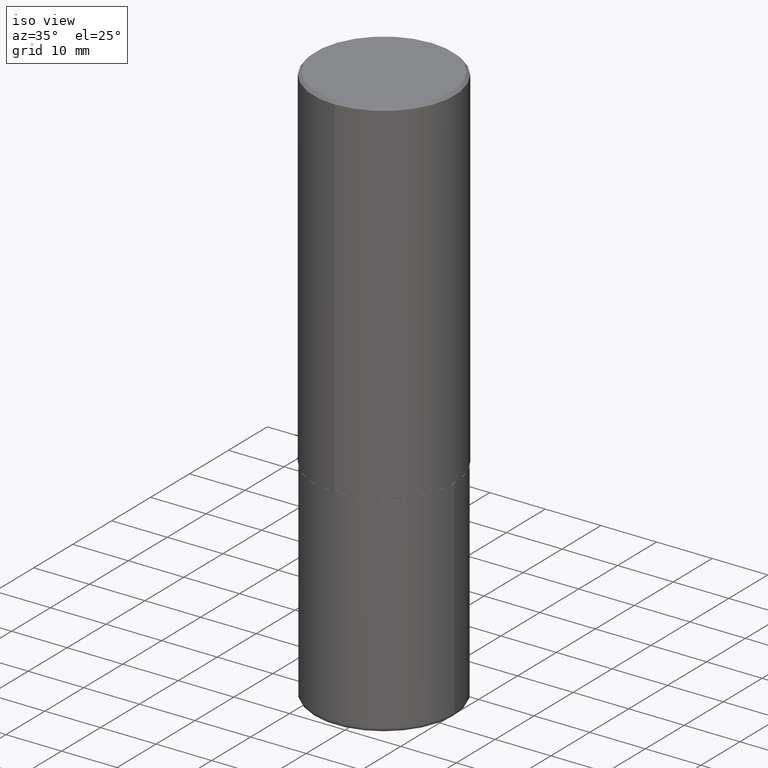
[diagram: clean part render]
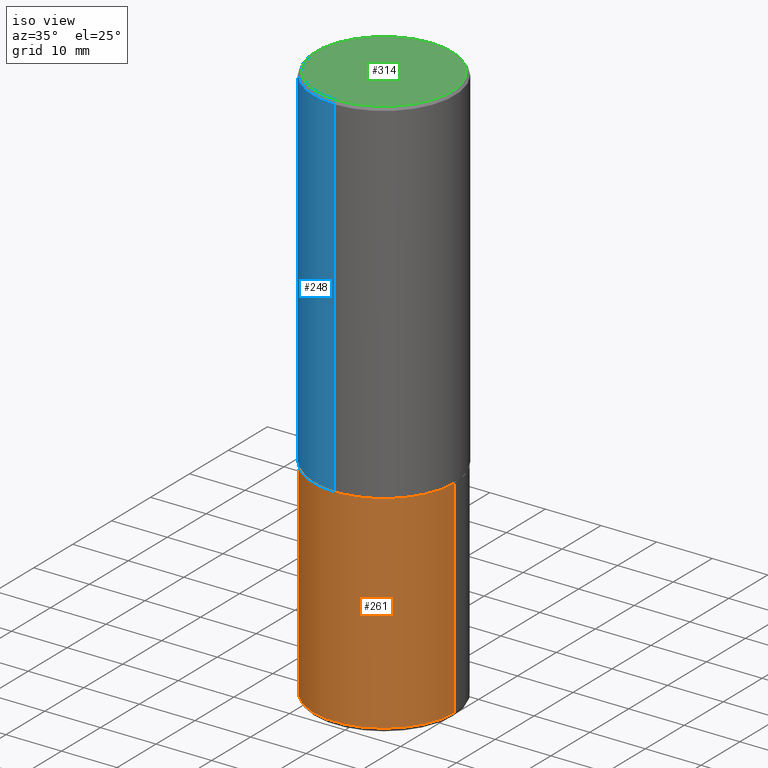
[diagram: same view with three faces highlighted in distinct colors, each labeled with its STEP entity id]
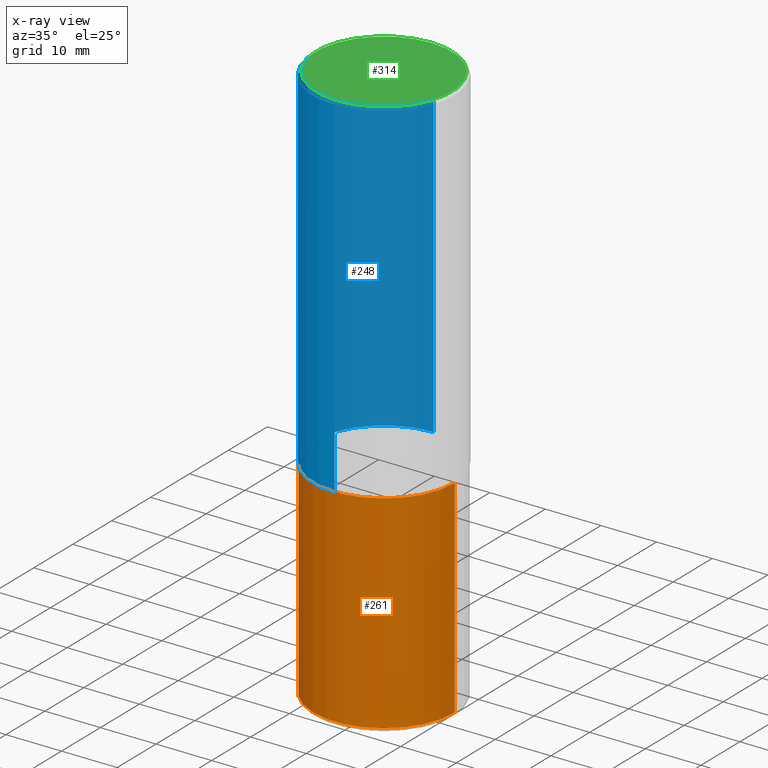
[diagram: x-ray of the same camera — body ghosted, the three highlighted faces saturated]
A machine part, iso view with three faces highlighted in distinct colors.
The next image is the same camera in x-ray (body ghosted, the three faces saturated) — at least one of them is partly hidden behind the body in this view.
Their STEP definitions:

[orange] entity #261 — the highlighted cylindrical surface (partial cylindrical patch) has radius 12.7 mm, axis along (-0, 0, 1).
#12 = CARTESIAN_POINT ( 'NONE',  ( -0.5000000000000000000, -1.030846723640678645E-14, -3.970000000000000195 ) ) ;
#16 = DIRECTION ( 'NONE',  ( -2.445468806185136597E-29, 3.491481338843145583E-15, 1.000000000000000000 ) ) ;
#19 = CARTESIAN_POINT ( 'NONE',  ( -0.5000000000000000000, -7.742228452357075234E-15, -2.500000000000000000 ) ) ;
#49 = CARTESIAN_POINT ( 'NONE',  ( 6.113672015462842613E-29, -8.728703347107864943E-15, -2.500000000000000000 ) ) ;
#69 = ORIENTED_EDGE ( 'NONE', *, *, #324, .F. ) ;
#75 = DIRECTION ( 'NONE',  ( -2.445468806185136877E-29, 3.491481338843145188E-15, 1.000000000000000000 ) ) ;
#81 = DIRECTION ( 'NONE',  ( 1.000000000000000000, -6.982962677686265133E-15, 0.000000000000000000 ) ) ;
#97 = ORIENTED_EDGE ( 'NONE', *, *, #138, .T. ) ;
#98 = EDGE_CURVE ( 'NONE', #128, #287, #199, .T. ) ;
#108 = CARTESIAN_POINT ( 'NONE',  ( 9.708511160554992872E-29, -1.386118091520728738E-14, -3.970000000000000195 ) ) ;
#112 = CARTESIAN_POINT ( 'NONE',  ( -0.5000000000000000000, 3.552713678800500929E-15, -2.459467545127452891E-29 ) ) ;
#118 = FACE_OUTER_BOUND ( 'NONE', #133, .T. ) ;
#119 = VERTEX_POINT ( 'NONE', #375 ) ;
#122 = CIRCLE ( 'NONE', #131, 0.5000000000000000000 ) ;
#126 = VERTEX_POINT ( 'NONE', #298 ) ;
#128 = VERTEX_POINT ( 'NONE', #12 ) ;
#131 = AXIS2_PLACEMENT_3D ( 'NONE', #49, #237, #277 ) ;
#133 = EDGE_LOOP ( 'NONE', ( #350, #97, #357, #69 ) ) ;
#138 = EDGE_CURVE ( 'NONE', #128, #126, #221, .T. ) ;
#159 = AXIS2_PLACEMENT_3D ( 'NONE', #108, #16, #81 ) ;
#199 = LINE ( 'NONE', #112, #334 ) ;
#221 = CIRCLE ( 'NONE', #159, 0.5000000000000001110 ) ;
#234 = EDGE_CURVE ( 'NONE', #126, #119, #332, .T. ) ;
#237 = DIRECTION ( 'NONE',  ( -2.445468806185136597E-29, 3.491481338843145583E-15, 1.000000000000000000 ) ) ;
#240 = VECTOR ( 'NONE', #244, 39.37007874015748143 ) ;
#242 = DIRECTION ( 'NONE',  ( -2.445468806185136597E-29, 3.491481338843145583E-15, 1.000000000000000000 ) ) ;
#244 = DIRECTION ( 'NONE',  ( -2.445468806185136877E-29, 3.491481338843145188E-15, 1.000000000000000000 ) ) ;
#261 = ADVANCED_FACE ( 'NONE', ( #118 ), #378, .T. ) ;
#273 = CARTESIAN_POINT ( 'NONE',  ( 0.5000000000000000000, -3.491481338843133355E-15, 2.438088387897967896E-29 ) ) ;
#277 = DIRECTION ( 'NONE',  ( 1.000000000000000000, -6.982962677686269077E-15, 0.000000000000000000 ) ) ;
#287 = VERTEX_POINT ( 'NONE', #19 ) ;
#298 = CARTESIAN_POINT ( 'NONE',  ( 0.5000000000000000000, -1.735266225405042074E-14, -3.970000000000000195 ) ) ;
#301 = AXIS2_PLACEMENT_3D ( 'NONE', #344, #242, #315 ) ;
#315 = DIRECTION ( 'NONE',  ( 1.000000000000000000, -6.982962677686266711E-15, 4.876176775795935793E-29 ) ) ;
#324 = EDGE_CURVE ( 'NONE', #287, #119, #122, .T. ) ;
#332 = LINE ( 'NONE', #273, #240 ) ;
#334 = VECTOR ( 'NONE', #75, 39.37007874015748143 ) ;
#344 = CARTESIAN_POINT ( 'NONE',  ( 0.000000000000000000, 0.000000000000000000, 0.000000000000000000 ) ) ;
#350 = ORIENTED_EDGE ( 'NONE', *, *, #98, .F. ) ;
#357 = ORIENTED_EDGE ( 'NONE', *, *, #234, .T. ) ;
#375 = CARTESIAN_POINT ( 'NONE',  ( 0.5000000000000000000, -1.222018468595099830E-14, -2.500000000000000000 ) ) ;
#378 = CYLINDRICAL_SURFACE ( 'NONE', #301, 0.5000000000000000000 ) ;

[blue] entity #248 — the highlighted cylindrical surface (partial cylindrical patch) has radius 12.7 mm, axis along (-0, 0, 1).
#8 = CARTESIAN_POINT ( 'NONE',  ( 6.109920473764365540E-29, -8.727082236487837614E-15, -2.499000000000000110 ) ) ;
#17 = AXIS2_PLACEMENT_3D ( 'NONE', #8, #401, #238 ) ;
#21 = EDGE_CURVE ( 'NONE', #360, #353, #396, .T. ) ;
#33 = VECTOR ( 'NONE', #210, 39.37007874015748143 ) ;
#35 = VERTEX_POINT ( 'NONE', #302 ) ;
#57 = CARTESIAN_POINT ( 'NONE',  ( 0.000000000000000000, 0.000000000000000000, 0.000000000000000000 ) ) ;
#58 = ORIENTED_EDGE ( 'NONE', *, *, #168, .T. ) ;
#76 = CARTESIAN_POINT ( 'NONE',  ( -3.430248998885764992E-15, -0.5000000000000001110, -0.01999999999999835937 ) ) ;
#86 = CARTESIAN_POINT ( 'NONE',  ( -3.491481338843073796E-15, -0.5000000000000089928, -2.498999999999998778 ) ) ;
#101 = VECTOR ( 'NONE', #408, 39.37007874015748143 ) ;
#115 = FACE_OUTER_BOUND ( 'NONE', #224, .T. ) ;
#121 = AXIS2_PLACEMENT_3D ( 'NONE', #231, #361, #158 ) ;
#147 = LINE ( 'NONE', #406, #101 ) ;
#158 = DIRECTION ( 'NONE',  ( -6.982962677686265922E-15, -1.000000000000000000, 3.491643216902136408E-15 ) ) ;
#161 = ORIENTED_EDGE ( 'NONE', *, *, #291, .F. ) ;
#162 = ORIENTED_EDGE ( 'NONE', *, *, #21, .F. ) ;
#168 = EDGE_CURVE ( 'NONE', #35, #256, #264, .T. ) ;
#183 = LINE ( 'NONE', #409, #33 ) ;
#196 = ORIENTED_EDGE ( 'NONE', *, *, #252, .T. ) ;
#210 = DIRECTION ( 'NONE',  ( -2.444946167972934928E-29, 3.492229786509738161E-15, 1.000000000000000000 ) ) ;
#224 = EDGE_LOOP ( 'NONE', ( #161, #58, #196, #162 ) ) ;
#231 = CARTESIAN_POINT ( 'NONE',  ( 4.889892335945895815E-31, -6.984459573019513448E-17, -0.02000000000000010797 ) ) ;
#238 = DIRECTION ( 'NONE',  ( -6.982962677686266711E-15, -1.000000000000000000, 3.278217592397114284E-15 ) ) ;
#245 = DIRECTION ( 'NONE',  ( -6.982962677686265922E-15, -1.000000000000000000, 3.492229786509738161E-15 ) ) ;
#248 = ADVANCED_FACE ( 'NONE', ( #115 ), #278, .T. ) ;
#252 = EDGE_CURVE ( 'NONE', #256, #353, #183, .T. ) ;
#256 = VERTEX_POINT ( 'NONE', #86 ) ;
#264 = CIRCLE ( 'NONE', #17, 0.5000000000000002220 ) ;
#278 = CYLINDRICAL_SURFACE ( 'NONE', #318, 0.5000000000000001110 ) ;
#291 = EDGE_CURVE ( 'NONE', #35, #360, #147, .T. ) ;
#302 = CARTESIAN_POINT ( 'NONE',  ( 3.552713678800533273E-15, 0.4999999999999916178, -2.499000000000001886 ) ) ;
#311 = DIRECTION ( 'NONE',  ( -2.444946167972934928E-29, 3.492229786509738161E-15, 1.000000000000000000 ) ) ;
#318 = AXIS2_PLACEMENT_3D ( 'NONE', #57, #311, #245 ) ;
#353 = VERTEX_POINT ( 'NONE', #76 ) ;
#360 = VERTEX_POINT ( 'NONE', #371 ) ;
#361 = DIRECTION ( 'NONE',  ( -2.444946167972934928E-29, 3.492229786509738161E-15, 1.000000000000000000 ) ) ;
#371 = CARTESIAN_POINT ( 'NONE',  ( 3.491481338843133355E-15, 0.4999999999999999445, -0.02000000000000185310 ) ) ;
#396 = CIRCLE ( 'NONE', #121, 0.5000000000000000000 ) ;
#401 = DIRECTION ( 'NONE',  ( -2.444946167972934928E-29, 3.492229786509738161E-15, 1.000000000000000000 ) ) ;
#406 = CARTESIAN_POINT ( 'NONE',  ( 3.552713678800501718E-15, 0.5000000000000001110, -1.746114893254869475E-15 ) ) ;
#408 = DIRECTION ( 'NONE',  ( -2.444946167972934928E-29, 3.492229786509738161E-15, 1.000000000000000000 ) ) ;
#409 = CARTESIAN_POINT ( 'NONE',  ( -3.491481338843133750E-15, -0.5000000000000001110, 1.746114893254869475E-15 ) ) ;

[green] entity #314 — the highlighted planar face has unit normal (0, -0, -1).
#4 = AXIS2_PLACEMENT_3D ( 'NONE', #40, #395, #136 ) ;
#9 = FACE_OUTER_BOUND ( 'NONE', #218, .T. ) ;
#38 = AXIS2_PLACEMENT_3D ( 'NONE', #167, #398, #175 ) ;
#40 = CARTESIAN_POINT ( 'NONE',  ( -5.540013713897219376E-45, 7.913058030796886371E-31, 2.265904168552862416E-16 ) ) ;
#66 = EDGE_CURVE ( 'NONE', #93, #96, #228, .T. ) ;
#93 = VERTEX_POINT ( 'NONE', #106 ) ;
#96 = VERTEX_POINT ( 'NONE', #270 ) ;
#106 = CARTESIAN_POINT ( 'NONE',  ( -3.361644018908049661E-15, -0.4799999999999998157, 1.902860714379959855E-15 ) ) ;
#111 = PLANE ( 'NONE',  #38 ) ;
#136 = DIRECTION ( 'NONE',  ( -6.982962677686265922E-15, -1.000000000000000000, 3.492229786509738161E-15 ) ) ;
#167 = CARTESIAN_POINT ( 'NONE',  ( 3.351822085289406364E-15, 0.4799999999999998157, -1.562975089097030468E-15 ) ) ;
#175 = DIRECTION ( 'NONE',  ( 6.982962677686265922E-15, 1.000000000000000000, -3.492229786509738161E-15 ) ) ;
#218 = EDGE_LOOP ( 'NONE', ( #388, #326 ) ) ;
#228 = CIRCLE ( 'NONE', #4, 0.4799999999999998157 ) ;
#239 = DIRECTION ( 'NONE',  ( -6.982962677686265922E-15, -1.000000000000000000, 3.492229786509738161E-15 ) ) ;
#270 = CARTESIAN_POINT ( 'NONE',  ( 3.421651712066270057E-15, 0.4799999999999998157, -1.449679880669387470E-15 ) ) ;
#314 = ADVANCED_FACE ( 'NONE', ( #9 ), #111, .F. ) ;
#326 = ORIENTED_EDGE ( 'NONE', *, *, #66, .T. ) ;
#352 = CIRCLE ( 'NONE', #359, 0.4799999999999998157 ) ;
#359 = AXIS2_PLACEMENT_3D ( 'NONE', #366, #374, #239 ) ;
#366 = CARTESIAN_POINT ( 'NONE',  ( -5.540013713897219376E-45, 7.913058030796886371E-31, 2.265904168552862416E-16 ) ) ;
#374 = DIRECTION ( 'NONE',  ( -2.444946167972934928E-29, 3.492229786509738161E-15, 1.000000000000000000 ) ) ;
#388 = ORIENTED_EDGE ( 'NONE', *, *, #415, .T. ) ;
#395 = DIRECTION ( 'NONE',  ( -2.444946167972934928E-29, 3.492229786509738161E-15, 1.000000000000000000 ) ) ;
#398 = DIRECTION ( 'NONE',  ( 2.444946167972934647E-29, -3.492229786509738161E-15, -1.000000000000000000 ) ) ;
#415 = EDGE_CURVE ( 'NONE', #96, #93, #352, .T. ) ;